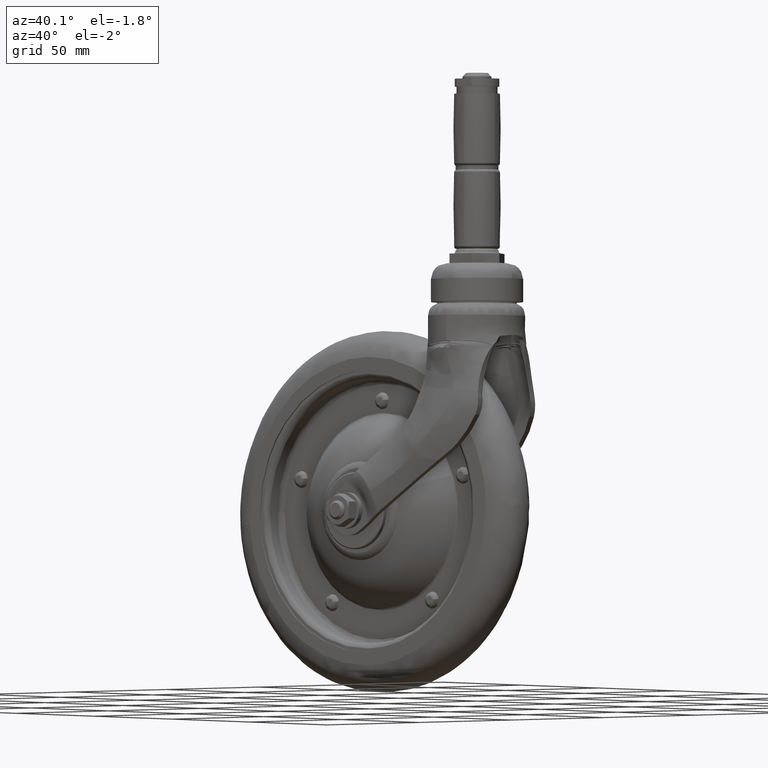
[diagram: clean part render]
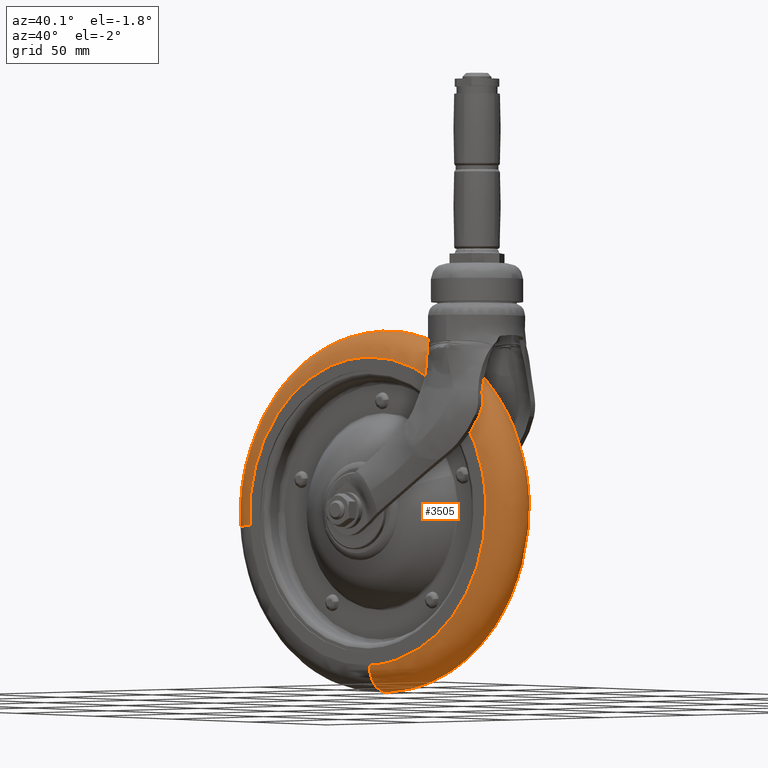
[diagram: same view with one face highlighted and labeled with its STEP entity id]
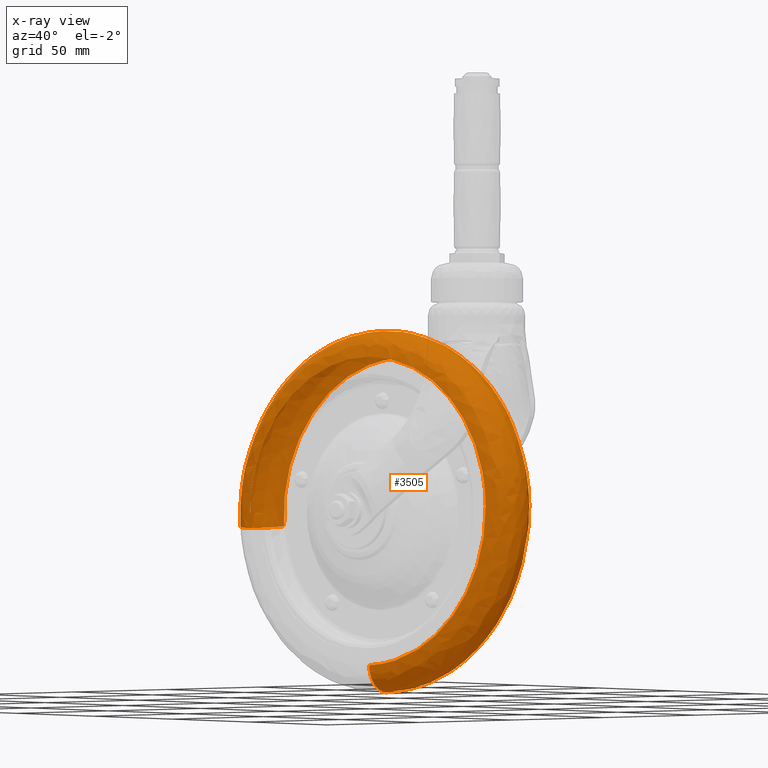
[diagram: x-ray of the same camera — body ghosted, the highlighted face saturated]
A machine part, auxiliary view. The second image highlights one B-rep face of the part: STEP entity #3505.
The next image is the same camera in x-ray: the body ghosted, the highlighted face saturated — about 0% of this face is hidden behind the body in this view.
In plain terms, the highlighted face is a freeform B-spline surface patch.
Its self-contained STEP definition (entity closure, byte-faithful):
#3268=CARTESIAN_POINT('',(-62.290502987611347,-10.889178996863485,-4.354315694031941));
#3269=CARTESIAN_POINT('',(-62.415121511779503,-10.889178996863485,-2.571589980632489));
#3270=CARTESIAN_POINT('',(-62.437577980477947,-10.889178996863489,-0.784655048186702));
#3271=CARTESIAN_POINT('',(-63.222233028664625,-10.889178996863487,61.652922932291226));
#3272=CARTESIAN_POINT('',(-0.784655048186706,-10.889178996863489,62.437577980477947));
#3273=CARTESIAN_POINT('',(61.652922932291226,-10.889178996863487,63.222233028664647));
#3274=CARTESIAN_POINT('',(62.437577980477947,-10.889178996863489,0.784655048186710));
#3275=CARTESIAN_POINT('',(63.222233028664647,-10.889178996863487,-61.652922932291219));
#3276=CARTESIAN_POINT('',(0.784655048186658,-10.889178996863489,-62.437577980477947));
#3277=CARTESIAN_POINT('',(-74.817425826672519,-12.685291524465848,-5.229989739028810));
#3278=CARTESIAN_POINT('',(-74.967105741609771,-12.685291524465852,-3.088749221865347));
#3279=CARTESIAN_POINT('',(-74.994078315286160,-12.685291524465848,-0.942452991251467));
#3280=CARTESIAN_POINT('',(-75.936531306537660,-12.685291524465852,74.051625324034703));
#3281=CARTESIAN_POINT('',(-0.942452991251471,-12.685291524465848,74.994078315286160));
#3282=CARTESIAN_POINT('',(74.051625324034703,-12.685291524465852,75.936531306537660));
#3283=CARTESIAN_POINT('',(74.994078315286160,-12.685291524465848,0.942452991251476));
#3284=CARTESIAN_POINT('',(75.936531306537660,-12.685291524465852,-74.051625324034674));
#3285=CARTESIAN_POINT('',(0.942452991251414,-12.685291524465848,-74.994078315286160));
#3286=CARTESIAN_POINT('',(-74.817425826672562,0.0,-5.229989739028813));
#3287=CARTESIAN_POINT('',(-74.967105741609771,0.0,-3.088749221865347));
#3288=CARTESIAN_POINT('',(-74.994078315286174,0.0,-0.942452991251467));
#3289=CARTESIAN_POINT('',(-75.936531306537631,0.0,74.051625324034703));
#3290=CARTESIAN_POINT('',(-0.942452991251472,0.0,74.994078315286174));
#3291=CARTESIAN_POINT('',(74.051625324034703,0.0,75.936531306537631));
#3292=CARTESIAN_POINT('',(74.994078315286174,0.0,0.942452991251476));
#3293=CARTESIAN_POINT('',(75.936531306537660,0.0,-74.051625324034688));
#3294=CARTESIAN_POINT('',(0.942452991251414,0.0,-74.994078315286174));
#3295=CARTESIAN_POINT('',(-74.817425826672505,12.685290349036828,-5.229989739028810));
#3296=CARTESIAN_POINT('',(-74.967105741609771,12.685290349036832,-3.088749221865347));
#3297=CARTESIAN_POINT('',(-74.994078315286160,12.685290349036828,-0.942452991251467));
#3298=CARTESIAN_POINT('',(-75.936531306537645,12.685290349036832,74.051625324034703));
#3299=CARTESIAN_POINT('',(-0.942452991251471,12.685290349036828,74.994078315286160));
#3300=CARTESIAN_POINT('',(74.051625324034703,12.685290349036832,75.936531306537645));
#3301=CARTESIAN_POINT('',(74.994078315286160,12.685290349036828,0.942452991251476));
#3302=CARTESIAN_POINT('',(75.936531306537660,12.685290349036832,-74.051625324034703));
#3303=CARTESIAN_POINT('',(0.942452991251414,12.685290349036828,-74.994078315286160));
#3304=CARTESIAN_POINT('',(-62.290503984014435,10.889179139727899,-4.354315763683868));
#3305=CARTESIAN_POINT('',(-62.415122510176005,10.889179139727901,-2.571590021767816));
#3306=CARTESIAN_POINT('',(-62.437578979233663,10.889179139727897,-0.784655060738097));
#3307=CARTESIAN_POINT('',(-63.222234039971731,10.889179139727897,61.652923918495532));
#3308=CARTESIAN_POINT('',(-0.784655060738101,10.889179139727897,62.437578979233663));
#3309=CARTESIAN_POINT('',(61.652923918495532,10.889179139727897,63.222234039971752));
#3310=CARTESIAN_POINT('',(62.437578979233663,10.889179139727897,0.784655060738105));
#3311=CARTESIAN_POINT('',(63.222234039971752,10.889179139727897,-61.652923918495532));
#3312=CARTESIAN_POINT('',(0.784655060738053,10.889179139727897,-62.437578979233663));
#3320=(BOUNDED_SURFACE()B_SPLINE_SURFACE(2,2,((#3268,#3277,#3286,#3295,#3304),(#3269,#3278,#3287,#3296,#3305),(#3270,#3279,#3288,#3297,#3306),(#3271,#3280,#3289,#3298,#3307),(#3272,#3281,#3290,#3299,#3308),(#3273,#3282,#3291,#3300,#3309),(#3274,#3283,#3292,#3301,#3310),(#3275,#3284,#3293,#3302,#3311),(#3276,#3285,#3294,#3303,#3312)),.UNSPECIFIED.,.F.,.F.,.U.)B_SPLINE_SURFACE_WITH_KNOTS((3,2,2,2,3),(3,2,3),(0.0,4.970558008179109,129.234626720107600,253.498695432036100,377.762764143964720),(0.0,20.084260051564229,40.168518889640062),.UNSPECIFIED.)GEOMETRIC_REPRESENTATION_ITEM()RATIONAL_B_SPLINE_SURFACE(((0.968327591332824,0.637386959701550,0.977505821353428,0.637386980251488,0.968327551342047),(0.979004848711051,0.644415102531696,0.988284282420452,0.644415123308228,0.979004808279315),(0.990610562290160,0.652054387583126,1.0,0.652054408605955,0.990610521379122),(0.700467446110391,0.461072079162470,0.707106781186548,0.461072094027854,0.700467417181919),(0.990610562290160,0.652054387583126,1.0,0.652054408605955,0.990610521379122),(0.700467446110391,0.461072079162470,0.707106781186548,0.461072094027854,0.700467417181919),(0.990610562290160,0.652054387583126,1.0,0.652054408605955,0.990610521379122),(0.700467446110391,0.461072079162470,0.707106781186548,0.461072094027854,0.700467417181919),(0.990610562290160,0.652054387583126,1.0,0.652054408605955,0.990610521379122)))REPRESENTATION_ITEM('')SURFACE());
#3321=CARTESIAN_POINT('',(-63.844203126711278,-11.0,-4.462928100922573));
#3322=VERTEX_POINT('',#3321);
#3323=CARTESIAN_POINT('',(0.0,-11.0,64.0));
#3324=VERTEX_POINT('',#3323);
#3325=CARTESIAN_POINT('',(-63.844203126711278,-11.0,-4.462928100922573));
#3326=CARTESIAN_POINT('',(-64.121046067477394,-11.0,-0.507831919512705));
#3327=CARTESIAN_POINT('',(-63.977535525122342,-11.000000000000011,5.669230478595906));
#3328=CARTESIAN_POINT('',(-62.358724692694899,-11.000000000000030,15.253121414112361));
#3329=CARTESIAN_POINT('',(-60.033661259195917,-10.999999999999931,22.719253985820799));
#3330=CARTESIAN_POINT('',(-56.470512192665687,-10.999999999999950,30.421204762772479));
#3331=CARTESIAN_POINT('',(-51.825873972473183,-11.000000000000041,38.020904499508340));
#3332=CARTESIAN_POINT('',(-45.122355584243657,-11.000000000000041,45.838293313779019));
#3333=CARTESIAN_POINT('',(-37.922675351548442,-10.999999999999970,51.766907553675708));
#3334=CARTESIAN_POINT('',(-31.561173801060178,-10.999999999999950,55.790140672107960));
#3335=CARTESIAN_POINT('',(-24.718845483266989,-10.999999999999989,59.247443161439321));
#3336=CARTESIAN_POINT('',(-16.551310132622671,-10.999999999999790,62.074694133789073));
#3337=CARTESIAN_POINT('',(-7.792736546072577,-11.000000000000430,63.692119769416109));
#3338=CARTESIAN_POINT('',(-2.460855950845109,-10.999999999999529,64.000053123627922));
#3339=CARTESIAN_POINT('',(0.0,-11.0,64.0));
#3340=B_SPLINE_CURVE_WITH_KNOTS('',3,(#3325,#3326,#3327,#3328,#3329,#3330,#3331,#3332,#3333,#3334,#3335,#3336,#3337,#3338,#3339),.UNSPECIFIED.,.F.,.U.,(4,1,1,1,1,1,1,1,1,1,1,1,4),(0.000000108352509,11.894254975327810,18.456594932181989,29.120458456139531,35.272669956256472,43.885797545879988,55.779936201789290,66.033656331381351,71.775742343814869,78.338125092700281,89.001991554283279,97.615120751024776,104.997697625100700),.UNSPECIFIED.);
#3341=EDGE_CURVE('',#3322,#3324,#3340,.T.);
#3342=ORIENTED_EDGE('',*,*,#3341,.T.);
#3343=CARTESIAN_POINT('',(63.998738233293587,-11.0,0.401876282412124));
#3344=VERTEX_POINT('',#3343);
#3345=CARTESIAN_POINT('',(0.0,-11.0,64.0));
#3346=CARTESIAN_POINT('',(3.911310325365609,-11.0,64.000447910476382));
#3347=CARTESIAN_POINT('',(10.169189961655480,-11.0,63.424383231484690));
#3348=CARTESIAN_POINT('',(19.939257096977030,-11.000000000000020,61.050843644395513));
#3349=CARTESIAN_POINT('',(27.590975885315022,-11.000000000000011,57.977254599343837));
#3350=CARTESIAN_POINT('',(35.182867816356072,-10.999999999999989,53.635473320869103));
#3351=CARTESIAN_POINT('',(42.123198901483107,-11.000000000000050,48.515886960865487));
#3352=CARTESIAN_POINT('',(48.488643576949997,-10.999999999999750,42.112574998029388));
#3353=CARTESIAN_POINT('',(53.393991303194383,-11.000000000000391,35.507206996010382));
#3354=CARTESIAN_POINT('',(57.034867730765590,-10.999999999999350,29.319624007512520));
#3355=CARTESIAN_POINT('',(60.565157299804177,-11.000000000000369,21.454606074978638));
#3356=CARTESIAN_POINT('',(63.279828887930947,-10.999999999999771,11.609906758246160));
#3357=CARTESIAN_POINT('',(63.976030561658519,-11.000000000000201,4.052329113451576));
#3358=CARTESIAN_POINT('',(63.998738233293587,-11.0,0.401876282412124));
#3359=B_SPLINE_CURVE_WITH_KNOTS('',3,(#3345,#3346,#3347,#3348,#3349,#3350,#3351,#3352,#3353,#3354,#3355,#3356,#3357,#3358),.UNSPECIFIED.,.F.,.U.,(4,1,1,1,1,1,1,1,1,1,1,4),(0.000000109969434,11.733842975932850,18.774222108818481,30.117001075137502,36.375091130567633,44.979961301996589,55.931492405413863,63.363033897940078,69.621111399551566,77.443711033630535,89.177663756600055,100.129241810897400),.UNSPECIFIED.);
#3360=EDGE_CURVE('',#3324,#3344,#3359,.T.);
#3361=ORIENTED_EDGE('',*,*,#3360,.T.);
#3362=CARTESIAN_POINT('',(0.804226552874877,-11.0,-63.994946832405759));
#3363=VERTEX_POINT('',#3362);
#3364=CARTESIAN_POINT('',(63.998738233293587,-11.0,0.401876282412124));
#3365=CARTESIAN_POINT('',(64.016803336836688,-11.000000000000011,-2.466304592959253));
#3366=CARTESIAN_POINT('',(63.611024695141630,-11.000000000000030,-9.118182741501363));
#3367=CARTESIAN_POINT('',(61.668607745162141,-11.0,-17.938068529535890));
#3368=CARTESIAN_POINT('',(58.767230988200787,-11.000000000000030,-25.635604512417920));
#3369=CARTESIAN_POINT('',(55.260350696046856,-10.999999999999980,-32.638534962664799));
#3370=CARTESIAN_POINT('',(50.877323617672467,-11.000000000000030,-39.147579399134251));
#3371=CARTESIAN_POINT('',(45.496111277681393,-10.999999999999980,-45.195748118493817));
#3372=CARTESIAN_POINT('',(39.774604010784458,-11.000000000000011,-50.354520034858332));
#3373=CARTESIAN_POINT('',(32.803737060185192,-10.999999999999931,-55.210305370312483));
#3374=CARTESIAN_POINT('',(24.039441187695559,-11.000000000000300,-59.605365849116602));
#3375=CARTESIAN_POINT('',(13.308511488066291,-10.999999999999110,-62.994524046799597));
#3376=CARTESIAN_POINT('',(5.236700488319660,-11.000000000000879,-63.939912273002882));
#3377=CARTESIAN_POINT('',(0.804226552874877,-11.0,-63.994946832405759));
#3378=B_SPLINE_CURVE_WITH_KNOTS('',3,(#3364,#3365,#3366,#3367,#3368,#3369,#3370,#3371,#3372,#3373,#3374,#3375,#3376,#3377),.UNSPECIFIED.,.F.,.U.,(4,1,1,1,1,1,1,1,1,1,1,4),(0.000000109849594,8.604749349187216,19.947505773251660,26.987829998818299,33.245878714102112,43.415244532144037,50.455436722634197,57.495739060228601,66.491746593405878,75.878819945986933,86.830404059751999,100.128751939226010),.UNSPECIFIED.);
#3379=EDGE_CURVE('',#3344,#3363,#3378,.T.);
#3380=ORIENTED_EDGE('',*,*,#3379,.T.);
#3381=CARTESIAN_POINT('',(0.942452991251435,0.000007167634388,-74.994078315283829));
#3382=VERTEX_POINT('',#3381);
#3383=CARTESIAN_POINT('',(0.804226552874877,-11.0,-63.994946832405759));
#3384=CARTESIAN_POINT('',(0.813273370207606,-11.000062691291379,-64.714831787025858));
#3385=CARTESIAN_POINT('',(0.832498105137464,-10.849353079611550,-66.244607057590400));
#3386=CARTESIAN_POINT('',(0.856359777776864,-10.247757905736361,-68.143358684249876));
#3387=CARTESIAN_POINT('',(0.882007098422774,-9.189044745978116,-70.184200184944359));
#3388=CARTESIAN_POINT('',(0.903745935079536,-7.787024286206024,-71.914030783698465));
#3389=CARTESIAN_POINT('',(0.920943978004857,-5.987557118501633,-73.282535518546553));
#3390=CARTESIAN_POINT('',(0.932564171915296,-4.231809901899791,-74.207192495959077));
#3391=CARTESIAN_POINT('',(0.940440179934434,-2.294809444039699,-74.833912310402297));
#3392=CARTESIAN_POINT('',(0.942454231915482,-0.764942293661877,-74.994177038793111));
#3393=CARTESIAN_POINT('',(0.942452991251435,0.000007167634388,-74.994078315283829));
#3394=B_SPLINE_CURVE_WITH_KNOTS('',3,(#3383,#3384,#3385,#3386,#3387,#3388,#3389,#3390,#3391,#3392,#3393),.UNSPECIFIED.,.F.,.U.,(4,1,1,1,1,1,1,1,4),(0.000000277016603,2.159842326193102,4.589707918284306,5.939618347178289,9.044397532140566,11.204237153391460,12.689167707873491,14.984024906138130,17.278872049569539),.UNSPECIFIED.);
#3395=EDGE_CURVE('',#3363,#3382,#3394,.T.);
#3396=ORIENTED_EDGE('',*,*,#3395,.T.);
#3397=CARTESIAN_POINT('',(0.804226552781634,11.0,-63.994946830791733));
#3398=VERTEX_POINT('',#3397);
#3399=CARTESIAN_POINT('',(0.942452991251435,0.000007167634388,-74.994078315283829));
#3400=CARTESIAN_POINT('',(0.942455021649371,0.854957736588075,-74.994239880938679));
#3401=CARTESIAN_POINT('',(0.940332576797264,2.294763329364023,-74.825349976742487));
#3402=CARTESIAN_POINT('',(0.931427452198879,4.485182261960029,-74.116739978729925));
#3403=CARTESIAN_POINT('',(0.918105510881683,6.383773186387280,-73.056669374523793));
#3404=CARTESIAN_POINT('',(0.899662497114972,8.043414596534674,-71.589098223671456));
#3405=CARTESIAN_POINT('',(0.881318783553150,9.182569932126913,-70.129428715973646));
#3406=CARTESIAN_POINT('',(0.861526504814510,10.062109197487199,-68.554492121648025));
#3407=CARTESIAN_POINT('',(0.836454690963748,10.789979726438750,-66.559445586424403));
#3408=CARTESIAN_POINT('',(0.816100693242125,11.000243591648610,-64.939811168400254));
#3409=CARTESIAN_POINT('',(0.804226552781634,11.0,-63.994946830791733));
#3410=B_SPLINE_CURVE_WITH_KNOTS('',3,(#3399,#3400,#3401,#3402,#3403,#3404,#3405,#3406,#3407,#3408,#3409),.UNSPECIFIED.,.F.,.U.,(4,1,1,1,1,1,1,1,4),(0.000000279508420,2.564826569540223,4.319718161481742,6.884606524182892,9.044393315868058,10.934278217654819,12.419181699637759,14.444085558686551,17.278863970834799),.UNSPECIFIED.);
#3411=EDGE_CURVE('',#3382,#3398,#3410,.T.);
#3412=ORIENTED_EDGE('',*,*,#3411,.T.);
#3413=CARTESIAN_POINT('',(63.998738233291348,11.0,0.401876282769045));
#3414=VERTEX_POINT('',#3413);
#3415=CARTESIAN_POINT('',(63.998738233291348,11.0,0.401876282769045));
#3416=CARTESIAN_POINT('',(64.016793648474518,10.999999999999989,-2.466301737348147));
#3417=CARTESIAN_POINT('',(63.611076148019663,11.000000000000011,-9.118198479305521));
#3418=CARTESIAN_POINT('',(61.555884818823202,10.999999999999980,-18.449325144132668));
#3419=CARTESIAN_POINT('',(57.750084943223413,11.000000000000020,-28.185714081249809));
#3420=CARTESIAN_POINT('',(53.262516343398893,10.999999999999959,-35.871958692486452));
#3421=CARTESIAN_POINT('',(48.484874556319411,11.000000000000011,-41.913811329380927));
#3422=CARTESIAN_POINT('',(44.256987084535183,11.0,-46.355883550828949));
#3423=CARTESIAN_POINT('',(38.458442369851547,11.0,-51.426095417106367));
#3424=CARTESIAN_POINT('',(31.661007679440431,11.0,-55.858776759773413));
#3425=CARTESIAN_POINT('',(23.985720158581021,10.999999999999989,-59.475224542645499));
#3426=CARTESIAN_POINT('',(16.695930012883039,11.000000000000050,-61.975244237167857));
#3427=CARTESIAN_POINT('',(8.752500308965303,10.999999999999879,-63.576828666487494));
#3428=CARTESIAN_POINT('',(3.281147826600710,11.000000000000121,-63.963857308487377));
#3429=CARTESIAN_POINT('',(0.804226552781634,11.0,-63.994946830791733));
#3430=B_SPLINE_CURVE_WITH_KNOTS('',3,(#3415,#3416,#3417,#3418,#3419,#3420,#3421,#3422,#3423,#3424,#3425,#3426,#3427,#3428,#3429),.UNSPECIFIED.,.F.,.U.,(4,1,1,1,1,1,1,1,1,1,1,1,4),(0.000000109940984,8.604749349201271,19.947505773163730,28.552342271427019,39.895066288260217,46.544227074683540,51.628853698900890,58.278028675406723,69.620770785213182,75.878819945382276,83.701381366251098,92.697388899341803,100.128751938391500),.UNSPECIFIED.);
#3431=EDGE_CURVE('',#3414,#3398,#3430,.T.);
#3432=ORIENTED_EDGE('',*,*,#3431,.F.);
#3433=CARTESIAN_POINT('',(0.0,11.0,64.0));
#3434=VERTEX_POINT('',#3433);
#3435=CARTESIAN_POINT('',(0.0,11.0,64.0));
#3436=CARTESIAN_POINT('',(3.911308150815739,11.000000000000011,64.000443046855764));
#3437=CARTESIAN_POINT('',(10.299574925111910,11.000000000000020,63.412405217787231));
#3438=CARTESIAN_POINT('',(20.063983859051909,11.000000000000011,61.008551245991292));
#3439=CARTESIAN_POINT('',(28.795816470173460,10.999999999999980,57.470173282713247));
#3440=CARTESIAN_POINT('',(36.613337068138947,11.000000000000030,52.709466715516349));
#3441=CARTESIAN_POINT('',(42.727120947475960,10.999999999999931,47.812544180851283));
#3442=CARTESIAN_POINT('',(48.284401104631392,11.000000000000171,42.290318717567480));
#3443=CARTESIAN_POINT('',(53.316476663887642,10.999999999999540,35.768214206662932));
#3444=CARTESIAN_POINT('',(57.272869480808822,11.000000000000790,28.852037490189719));
#3445=CARTESIAN_POINT('',(59.976186719145929,10.999999999999510,22.625909914009650));
#3446=CARTESIAN_POINT('',(62.179034386627073,11.000000000000250,15.792898601179809));
#3447=CARTESIAN_POINT('',(63.630609407376362,10.999999999999940,8.352671139558540));
#3448=CARTESIAN_POINT('',(63.983222477162514,10.999999999999829,2.878953987268406));
#3449=CARTESIAN_POINT('',(63.998738233291348,11.0,0.401876282769045));
#3450=B_SPLINE_CURVE_WITH_KNOTS('',3,(#3435,#3436,#3437,#3438,#3439,#3440,#3441,#3442,#3443,#3444,#3445,#3446,#3447,#3448,#3449),.UNSPECIFIED.,.F.,.U.,(4,1,1,1,1,1,1,1,1,1,1,1,4),(0.000000110079057,11.733842976028230,19.165353529270732,30.117001075211348,39.895261472642609,46.544454789421820,53.584776365531617,63.363033897971917,71.185631608657744,77.443711033644803,83.701790869351825,92.697842414965379,100.129241810881000),.UNSPECIFIED.);
#3451=EDGE_CURVE('',#3434,#3414,#3450,.T.);
#3452=ORIENTED_EDGE('',*,*,#3451,.F.);
#3453=CARTESIAN_POINT('',(-63.844203125987157,11.0,-4.462928100856860));
#3454=VERTEX_POINT('',#3453);
#3455=CARTESIAN_POINT('',(-63.844203125987157,11.0,-4.462928100856860));
#3456=CARTESIAN_POINT('',(-64.015848532776019,11.000000000000011,-2.008061602258546));
#3457=CARTESIAN_POINT('',(-64.082207355915116,10.999999999999950,3.469253389695048));
#3458=CARTESIAN_POINT('',(-63.114185180293831,11.000000000000060,11.773404457842400));
#3459=CARTESIAN_POINT('',(-60.946280037612397,10.999999999999931,20.129394467236281));
#3460=CARTESIAN_POINT('',(-58.011973203401560,11.000000000000030,27.365936920584289));
#3461=CARTESIAN_POINT('',(-54.332767410661461,11.000000000000011,34.091506919510337));
#3462=CARTESIAN_POINT('',(-49.584240661379653,10.999999999999989,40.800905135369241));
#3463=CARTESIAN_POINT('',(-43.087450372578481,11.000000000000121,47.678966576304347));
#3464=CARTESIAN_POINT('',(-36.136137342491487,10.999999999999851,53.039049392692156));
#3465=CARTESIAN_POINT('',(-29.044927966938221,11.000000000000311,57.181426710798583));
#3466=CARTESIAN_POINT('',(-22.906138272887539,11.000000000000030,59.897561199912580));
#3467=CARTESIAN_POINT('',(-15.862926951843260,10.999999999999959,62.135123772047692));
#3468=CARTESIAN_POINT('',(-8.476338474072211,10.999999999999821,63.622196891193838));
#3469=CARTESIAN_POINT('',(-2.871030960934867,11.000000000000540,64.000117693684231));
#3470=CARTESIAN_POINT('',(0.0,11.0,64.0));
#3471=B_SPLINE_CURVE_WITH_KNOTS('',3,(#3455,#3456,#3457,#3458,#3459,#3460,#3461,#3462,#3463,#3464,#3465,#3466,#3467,#3468,#3469,#3470),.UNSPECIFIED.,.F.,.U.,(4,1,1,1,1,1,1,1,1,1,1,1,1,4),(0.000000108337801,7.382593323728429,16.405851200703552,25.018982570455719,33.221931023712202,39.784323586638017,47.987244494664388,57.830680994921202,68.084400165056138,74.236636169187335,82.439603144661845,88.181675365398974,96.384606163726644,104.997697624878000),.UNSPECIFIED.);
#3472=EDGE_CURVE('',#3454,#3434,#3471,.T.);
#3473=ORIENTED_EDGE('',*,*,#3472,.F.);
#3474=CARTESIAN_POINT('',(-74.817425538030079,0.000007167097850,-5.229993868158015));
#3475=VERTEX_POINT('',#3474);
#3476=CARTESIAN_POINT('',(-74.817425538030079,0.000007167097850,-5.229993868158015));
#3477=CARTESIAN_POINT('',(-74.818488794865985,1.305082829241381,-5.230068193445538));
#3478=CARTESIAN_POINT('',(-74.453592039455927,3.329167229675803,-5.204560662551088));
#3479=CARTESIAN_POINT('',(-73.365159584205031,5.563878101399361,-5.128475512255149));
#3480=CARTESIAN_POINT('',(-72.303470693114534,7.075046473825047,-5.054259828538665));
#3481=CARTESIAN_POINT('',(-70.927140852118299,8.506677820077728,-4.958049666573390));
#3482=CARTESIAN_POINT('',(-68.831623608083078,9.929316554887548,-4.811565846021325));
#3483=CARTESIAN_POINT('',(-66.357914018654256,10.816437679975440,-4.638645087375170));
#3484=CARTESIAN_POINT('',(-64.607279821064211,11.000061586753541,-4.516269771027575));
#3485=CARTESIAN_POINT('',(-63.844203125987157,11.0,-4.462928100856860));
#3486=B_SPLINE_CURVE_WITH_KNOTS('',3,(#3476,#3477,#3478,#3479,#3480,#3481,#3482,#3483,#3484,#3485),.UNSPECIFIED.,.F.,.U.,(4,1,1,1,1,1,1,4),(0.000000279475604,3.914735910560816,6.074639946354791,7.424533916226034,9.449354039777862,12.014204396610509,14.984017906041220,17.278863972010530),.UNSPECIFIED.);
#3487=EDGE_CURVE('',#3475,#3454,#3486,.T.);
#3488=ORIENTED_EDGE('',*,*,#3487,.F.);
#3489=CARTESIAN_POINT('',(-63.844203126711278,-11.0,-4.462928100922573));
#3490=CARTESIAN_POINT('',(-64.562392706782674,-11.000069754710021,-4.513132008272073));
#3491=CARTESIAN_POINT('',(-66.178346104075757,-10.840516543601250,-4.626092676165208));
#3492=CARTESIAN_POINT('',(-68.368491843780191,-10.115359295126300,-4.779191352125872));
#3493=CARTESIAN_POINT('',(-70.192291754609641,-9.034415301849778,-4.906681202003242));
#3494=CARTESIAN_POINT('',(-71.707666397675055,-7.756316143333421,-5.012611071066576));
#3495=CARTESIAN_POINT('',(-72.890275606485076,-6.329726946386445,-5.095279498451959));
#3496=CARTESIAN_POINT('',(-73.955204321135369,-4.445373214031498,-5.169721656910860));
#3497=CARTESIAN_POINT('',(-74.648307281316505,-2.384830498777562,-5.218171923750049));
#3498=CARTESIAN_POINT('',(-74.817506933456116,-0.764934755057615,-5.229999557977138));
#3499=CARTESIAN_POINT('',(-74.817425538030079,0.000007167097850,-5.229993868158015));
#3500=B_SPLINE_CURVE_WITH_KNOTS('',3,(#3489,#3490,#3491,#3492,#3493,#3494,#3495,#3496,#3497,#3498,#3499),.UNSPECIFIED.,.F.,.U.,(4,1,1,1,1,1,1,1,4),(0.000000276995280,2.159842326309715,4.859690410986392,6.884609740790207,8.504526647153035,10.799249474996589,12.419187504526681,14.984024907064301,17.278872050641109),.UNSPECIFIED.);
#3501=EDGE_CURVE('',#3322,#3475,#3500,.T.);
#3502=ORIENTED_EDGE('',*,*,#3501,.F.);
#3503=EDGE_LOOP('',(#3342,#3361,#3380,#3396,#3412,#3432,#3452,#3473,#3488,#3502));
#3504=FACE_OUTER_BOUND('',#3503,.T.);
#3505=ADVANCED_FACE('',(#3504),#3320,.T.);